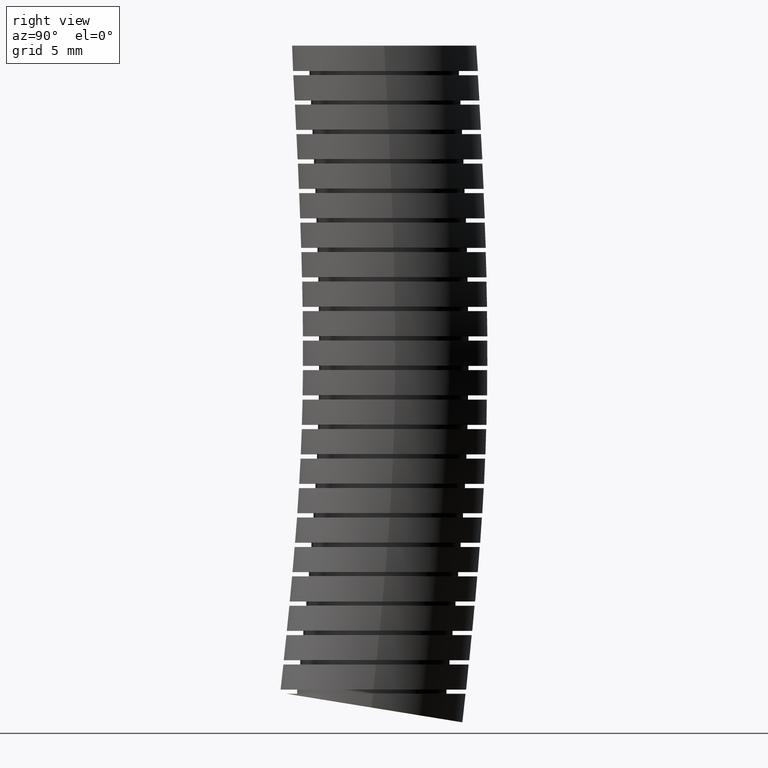
[diagram: clean part render]
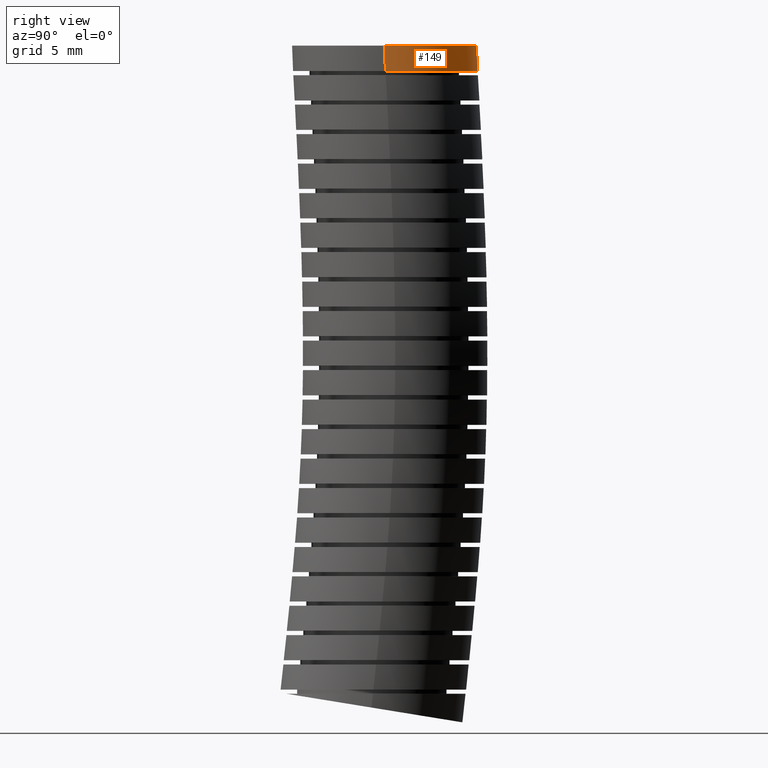
[diagram: same view with one face highlighted and labeled with its STEP entity id]
A machine part, right view. The second image highlights one B-rep face of the part: STEP entity #149.
In plain terms, the highlighted face is a freeform B-spline surface patch.
Its self-contained STEP definition (entity closure, byte-faithful):
#149 = ADVANCED_FACE ( 'NONE', ( #2914 ), #3220, .T. ) ;
#155 = ORIENTED_EDGE ( 'NONE', *, *, #185, .T. ) ;
#160 = EDGE_LOOP ( 'NONE', ( #262, #263, #248, #155 ) ) ;
#185 = EDGE_CURVE ( 'NONE', #11714, #11773, #3561, .T. ) ;
#247 = EDGE_CURVE ( 'NONE', #11772, #11783, #4138, .T. ) ;
#248 = ORIENTED_EDGE ( 'NONE', *, *, #11769, .T. ) ;
#262 = ORIENTED_EDGE ( 'NONE', *, *, #11785, .F. ) ;
#263 = ORIENTED_EDGE ( 'NONE', *, *, #247, .F. ) ;
#2914 = FACE_OUTER_BOUND ( 'NONE', #160, .T. ) ;
#3195 = CARTESIAN_POINT ( 'NONE',  ( 0.2199999999999999700, -0.4399999999999999500, 0.0000000000000000000 ) ) ;
#3196 = CARTESIAN_POINT ( 'NONE',  ( 0.2199999999999999700, -0.02999999999999998800, -1.569999999999999800 ) ) ;
#3197 = CARTESIAN_POINT ( 'NONE',  ( 0.2200000000000000000, -0.009606929841608550400, -1.380125810173523200 ) ) ;
#3198 = CARTESIAN_POINT ( 'NONE',  ( 0.2200000000000000000, 0.01505095857590814400, -1.150543086741312900 ) ) ;
#3204 = CARTESIAN_POINT ( 'NONE',  ( 0.2199999999999999700, -0.02999999999999998800, -1.569999999999999800 ) ) ;
#3205 = CARTESIAN_POINT ( 'NONE',  ( 0.2200000000000000000, -0.009606929841608550400, -1.380125810173523200 ) ) ;
#3206 = CARTESIAN_POINT ( 'NONE',  ( 0.2200000000000000000, 0.01505095857590814400, -1.150543086741312900 ) ) ;
#3207 = CARTESIAN_POINT ( 'NONE',  ( 0.2200000000000000000, 0.02865554522839106700, -0.7739593172595274900 ) ) ;
#3212 = CARTESIAN_POINT ( 'NONE',  ( -0.2199999999999998900, 0.4678224181498505900, -0.8025352102838663200 ) ) ;
#3213 = CARTESIAN_POINT ( 'NONE',  ( -0.2199999999999998600, 0.4639985686767905100, -0.4446172821565409500 ) ) ;
#3214 = CARTESIAN_POINT ( 'NONE',  ( -0.2199999999999998900, 0.4479995228922634700, -0.1482057607188469700 ) ) ;
#3215 = CARTESIAN_POINT ( 'NONE',  ( -0.2199999999999998900, 0.4399999999999999500, 0.0000000000000000000 ) ) ;
#3216 = CARTESIAN_POINT ( 'NONE',  ( -0.2199999999999999700, -0.02999999999999996100, -1.569999999999999800 ) ) ;
#3217 = CARTESIAN_POINT ( 'NONE',  ( -0.2200000000000000000, -0.009606929841608527800, -1.380125810173523200 ) ) ;
#3220 =( BOUNDED_SURFACE ( )  B_SPLINE_SURFACE ( 3, 3, ( 
 ( #3239, #3238, #3237, #3236, #3198, #3197, #3196 ),
 ( #3195, #3311, #3310, #3309, #3308, #3307, #3306 ),
 ( #3255, #3254, #3253, #3252, #3251, #3250, #3324 ),
 ( #3323, #3322, #3321, #3320, #3319, #3217, #3216 ),
 ( #3215, #3214, #3213, #3212, #3292, #3291, #3290 ),
 ( #3289, #3288, #3287, #3318, #3317, #3316, #3315 ),
 ( #3314, #3313, #3312, #3207, #3206, #3205, #3204 ) ),
 .UNSPECIFIED., .F., .F., .T. ) 
 B_SPLINE_SURFACE_WITH_KNOTS ( ( 4, 3, 4 ),
 ( 4, 1, 1, 1, 4 ),
 ( 0.0000000000000000000, 0.5000000000000000000, 1.000000000000000000 ),
 ( 0.0000000000000000000, 0.2799999999999999700, 0.5600000000000000500, 0.6361022193888284900, 1.000000000000000000 ),
 .UNSPECIFIED. ) 
 GEOMETRIC_REPRESENTATION_ITEM ( )  RATIONAL_B_SPLINE_SURFACE ( (
 ( 1.000000000000000000, 1.000000000000000000, 1.000000000000000200, 0.9999999999999997800, 0.9999999999999997800, 1.000000000000000000, 1.000000000000000000),
 ( 0.3333333333333333100, 0.3333333333333333100, 0.3333333333333333700, 0.3333333333333333100, 0.3333333333333332600, 0.3333333333333333100, 0.3333333333333333100),
 ( 0.3333333333333333100, 0.3333333333333333100, 0.3333333333333333700, 0.3333333333333333100, 0.3333333333333332600, 0.3333333333333333100, 0.3333333333333333100),
 ( 1.000000000000000000, 1.000000000000000000, 1.000000000000000200, 0.9999999999999997800, 0.9999999999999997800, 1.000000000000000000, 1.000000000000000000),
 ( 0.3333333333333333100, 0.3333333333333333100, 0.3333333333333333700, 0.3333333333333333100, 0.3333333333333332600, 0.3333333333333333100, 0.3333333333333333100),
 ( 0.3333333333333333100, 0.3333333333333333100, 0.3333333333333333700, 0.3333333333333333100, 0.3333333333333332600, 0.3333333333333333100, 0.3333333333333333100),
 ( 1.000000000000000000, 1.000000000000000000, 1.000000000000000200, 0.9999999999999997800, 0.9999999999999997800, 1.000000000000000000, 1.000000000000000000) ) ) 
 REPRESENTATION_ITEM ( '' )  SURFACE ( )  );
#3232 = CARTESIAN_POINT ( 'NONE',  ( -0.1340823162528526600, 0.1782420982723354200, -0.05999999999999994900 ) ) ;
#3234 = CARTESIAN_POINT ( 'NONE',  ( -0.1161989237648944500, 0.1901819290986074000, -0.05999999999999996300 ) ) ;
#3235 = CARTESIAN_POINT ( 'NONE',  ( -0.1100340641420366900, 0.1938777587332988800, -0.05999999999999997700 ) ) ;
#3236 = CARTESIAN_POINT ( 'NONE',  ( 0.2200000000000000000, 0.02865554522839106700, -0.7739593172595274900 ) ) ;
#3237 = CARTESIAN_POINT ( 'NONE',  ( 0.2199999999999999500, 0.02383978768935241300, -0.4406884739917595300 ) ) ;
#3238 = CARTESIAN_POINT ( 'NONE',  ( 0.2199999999999999500, 0.007946595896450805000, -0.1468961579972532000 ) ) ;
#3239 = CARTESIAN_POINT ( 'NONE',  ( 0.2199999999999999700, 0.0000000000000000000, 0.0000000000000000000 ) ) ;
#3250 = CARTESIAN_POINT ( 'NONE',  ( -0.2200000000000000600, -0.4452605421868002200, -1.318319795305659300 ) ) ;
#3251 = CARTESIAN_POINT ( 'NONE',  ( -0.2200000000000000600, -0.4222307848547833300, -1.099310172281269500 ) ) ;
#3252 = CARTESIAN_POINT ( 'NONE',  ( -0.2199999999999999700, -0.4105113276930683100, -0.7453834242351884400 ) ) ;
#3253 = CARTESIAN_POINT ( 'NONE',  ( -0.2200000000000000300, -0.4163189932980856400, -0.4367596658269781200 ) ) ;
#3254 = CARTESIAN_POINT ( 'NONE',  ( -0.2200000000000000800, -0.4321063310993618100, -0.1455865552756593400 ) ) ;
#3255 = CARTESIAN_POINT ( 'NONE',  ( -0.2200000000000000600, -0.4399999999999999500, 0.0000000000000000000 ) ) ;
#3287 = CARTESIAN_POINT ( 'NONE',  ( 0.2199999999999999700, 0.4639985686767905100, -0.4446172821565409500 ) ) ;
#3288 = CARTESIAN_POINT ( 'NONE',  ( 0.2199999999999999700, 0.4479995228922634700, -0.1482057607188469700 ) ) ;
#3289 = CARTESIAN_POINT ( 'NONE',  ( 0.2199999999999999700, 0.4399999999999999500, 0.0000000000000000000 ) ) ;
#3290 = CARTESIAN_POINT ( 'NONE',  ( -0.2199999999999998900, 0.4043070821439249100, -1.640550396169192700 ) ) ;
#3291 = CARTESIAN_POINT ( 'NONE',  ( -0.2199999999999998900, 0.4260466825035831300, -1.441931825041386800 ) ) ;
#3292 = CARTESIAN_POINT ( 'NONE',  ( -0.2199999999999999200, 0.4523327020065995900, -1.201776001201356700 ) ) ;
#3306 = CARTESIAN_POINT ( 'NONE',  ( 0.2199999999999999700, -0.4643070821439249100, -1.499449603830806900 ) ) ;
#3307 = CARTESIAN_POINT ( 'NONE',  ( 0.2199999999999999700, -0.4452605421868002200, -1.318319795305659300 ) ) ;
#3308 = CARTESIAN_POINT ( 'NONE',  ( 0.2200000000000000600, -0.4222307848547833300, -1.099310172281269500 ) ) ;
#3309 = CARTESIAN_POINT ( 'NONE',  ( 0.2199999999999999700, -0.4105113276930683100, -0.7453834242351884400 ) ) ;
#3310 = CARTESIAN_POINT ( 'NONE',  ( 0.2199999999999999700, -0.4163189932980856400, -0.4367596658269781200 ) ) ;
#3311 = CARTESIAN_POINT ( 'NONE',  ( 0.2199999999999999700, -0.4321063310993618100, -0.1455865552756593400 ) ) ;
#3312 = CARTESIAN_POINT ( 'NONE',  ( 0.2199999999999999500, 0.02383978768935241300, -0.4406884739917595300 ) ) ;
#3313 = CARTESIAN_POINT ( 'NONE',  ( 0.2199999999999999500, 0.007946595896450805000, -0.1468961579972532000 ) ) ;
#3314 = CARTESIAN_POINT ( 'NONE',  ( 0.2199999999999999700, 0.0000000000000000000, 0.0000000000000000000 ) ) ;
#3315 = CARTESIAN_POINT ( 'NONE',  ( 0.2199999999999999700, 0.4043070821439249100, -1.640550396169192700 ) ) ;
#3316 = CARTESIAN_POINT ( 'NONE',  ( 0.2199999999999999700, 0.4260466825035831300, -1.441931825041386800 ) ) ;
#3317 = CARTESIAN_POINT ( 'NONE',  ( 0.2200000000000000600, 0.4523327020065995900, -1.201776001201356700 ) ) ;
#3318 = CARTESIAN_POINT ( 'NONE',  ( 0.2199999999999999700, 0.4678224181498505900, -0.8025352102838663200 ) ) ;
#3319 = CARTESIAN_POINT ( 'NONE',  ( -0.2200000000000000000, 0.01505095857590816600, -1.150543086741312900 ) ) ;
#3320 = CARTESIAN_POINT ( 'NONE',  ( -0.2200000000000000000, 0.02865554522839109900, -0.7739593172595274900 ) ) ;
#3321 = CARTESIAN_POINT ( 'NONE',  ( -0.2199999999999999500, 0.02383978768935243700, -0.4406884739917595300 ) ) ;
#3322 = CARTESIAN_POINT ( 'NONE',  ( -0.2199999999999999500, 0.007946595896450831000, -0.1468961579972532000 ) ) ;
#3323 = CARTESIAN_POINT ( 'NONE',  ( -0.2199999999999999700, 2.694222958124176600E-017, 0.0000000000000000000 ) ) ;
#3324 = CARTESIAN_POINT ( 'NONE',  ( -0.2200000000000000600, -0.4643070821439249100, -1.499449603830806900 ) ) ;
#3355 = CARTESIAN_POINT ( 'NONE',  ( 0.1343298111861374600, 0.1780628566713958700, -0.05999999999999992100 ) ) ;
#3356 = CARTESIAN_POINT ( 'NONE',  ( 0.1454048124511096700, 0.1689561859374454400, -0.05999999999999995600 ) ) ;
#3357 = CARTESIAN_POINT ( 'NONE',  ( 0.1657022210090843000, 0.1486617638557394800, -0.05999999999999994900 ) ) ;
#3358 = CARTESIAN_POINT ( 'NONE',  ( 0.1749941402933339900, 0.1373393578235718700, -0.05999999999999998400 ) ) ;
#3359 = CARTESIAN_POINT ( 'NONE',  ( 0.1909580762678476100, 0.1134257305537671700, -0.05999999999999998400 ) ) ;
#3360 = CARTESIAN_POINT ( 'NONE',  ( 0.1977150799982625700, 0.1007900556247162000, -0.06000000000000001200 ) ) ;
#3361 = CARTESIAN_POINT ( 'NONE',  ( 0.2059965041236296300, 0.08080903231453538700, -0.05999999999999999800 ) ) ;
#3362 = CARTESIAN_POINT ( 'NONE',  ( 0.2084543846087093000, 0.07394005947621301600, -0.06000000000000006000 ) ) ;
#3363 = CARTESIAN_POINT ( 'NONE',  ( 0.2126418274003860900, 0.06011962447705119400, -0.06000000000000004600 ) ) ;
#3364 = CARTESIAN_POINT ( 'NONE',  ( 0.2143832120613619100, 0.05314940277817538400, -0.06000000000000001900 ) ) ;
#3365 = CARTESIAN_POINT ( 'NONE',  ( 0.2185739309260156200, 0.03206274000472529600, -0.06000000000000001900 ) ) ;
#3366 = CARTESIAN_POINT ( 'NONE',  ( 0.2199999999999999500, 0.01777203323856023700, -0.06000000000000183000 ) ) ;
#3367 = CARTESIAN_POINT ( 'NONE',  ( 0.2199999999999999700, 0.003238461836219977600, -0.05999999999999999800 ) ) ;
#3389 = CARTESIAN_POINT ( 'NONE',  ( -0.09728685598290426300, 0.2006872006721845700, -0.05999999999999997700 ) ) ;
#3390 = CARTESIAN_POINT ( 'NONE',  ( -0.09069312698740977800, 0.2038005312165776200, -0.05999999999999995600 ) ) ;
#3391 = CARTESIAN_POINT ( 'NONE',  ( -0.07071705980607868900, 0.2120567890857372200, -0.05999999999999996300 ) ) ;
#3392 = CARTESIAN_POINT ( 'NONE',  ( -0.05700353465040890900, 0.2162073898680294800, -0.05999999999999994200 ) ) ;
#3393 = CARTESIAN_POINT ( 'NONE',  ( -0.02878855248798623700, 0.2218163541753221100, -0.05999999999999994900 ) ) ;
#3394 = CARTESIAN_POINT ( 'NONE',  ( -0.01421653844502615700, 0.2232427432876481500, -0.05999999999999993500 ) ) ;
#3395 = CARTESIAN_POINT ( 'NONE',  ( 0.01447689912795179300, 0.2232257648704847100, -0.05999999999999993500 ) ) ;
#3396 = CARTESIAN_POINT ( 'NONE',  ( 0.02875037841138290300, 0.2218275319487606800, -0.05999999999999996300 ) ) ;
#3397 = CARTESIAN_POINT ( 'NONE',  ( 0.05714683807039441800, 0.2161752997184785400, -0.05999999999999995600 ) ) ;
#3398 = CARTESIAN_POINT ( 'NONE',  ( 0.07100749478239330700, 0.2119525202546918300, -0.05999999999999996300 ) ) ;
#3399 = CARTESIAN_POINT ( 'NONE',  ( 0.09086054373334530300, 0.2037232638745617200, -0.05999999999999994900 ) ) ;
#3400 = CARTESIAN_POINT ( 'NONE',  ( 0.09734551815155115300, 0.2006573441184884000, -0.05999999999999999800 ) ) ;
#3401 = CARTESIAN_POINT ( 'NONE',  ( 0.1100459697035827400, 0.1938699104041536300, -0.05999999999999999100 ) ) ;
#3402 = CARTESIAN_POINT ( 'NONE',  ( 0.1162947333697186600, 0.1901248357834572900, -0.05999999999999990100 ) ) ;
#3561 = B_SPLINE_CURVE_WITH_KNOTS ( 'NONE', 3,
 ( #3367, #3366, #3365, #3364, #3363, #3362, #3361, #3360, #3359, #3358, #3357, #3356, #3355, #3402, #3401, #3400, #3399, #3398, #3397, #3396, #3395, #3394, #3393, #3392, #3391, #3390, #3389, #3235, #3234, #3232, #3594, #3590, #3615, #3595, #3675, #3601, #3589, #3613, #3702, #3769, #3610, #3647 ),
 .UNSPECIFIED., .F., .F.,
 ( 4, 2, 2, 2, 2, 2, 2, 2, 2, 2, 2, 2, 2, 2, 2, 2, 2, 2, 2, 2, 4 ),
 ( 5.222490562457162100E-018, 0.001091739279144493100, 0.001637608918716736800, 0.002183478558288980600, 0.003275217837433466300, 0.004366957116577951600, 0.005458696395722439100, 0.006004566035294680600, 0.006550435674866923000, 0.007642174954011406200, 0.008733914233155889300, 0.009825653512300372400, 0.01091739279144485700, 0.01146326243101709900, 0.01200913207058934000, 0.01310087134973382500, 0.01419261062887830800, 0.01473848026845054800, 0.01528434990802278800, 0.01637608918716727100, 0.01746782846631175100 ),
 .UNSPECIFIED. ) ;
#3589 = CARTESIAN_POINT ( 'NONE',  ( -0.2004594574610308900, 0.09416560805423235300, -0.06000000000000002600 ) ) ;
#3590 = CARTESIAN_POINT ( 'NONE',  ( -0.1657413177628180900, 0.1486338468370533300, -0.05999999999999994200 ) ) ;
#3594 = CARTESIAN_POINT ( 'NONE',  ( -0.1451956274073803700, 0.1691540733058368400, -0.05999999999999996300 ) ) ;
#3595 = CARTESIAN_POINT ( 'NONE',  ( -0.1868223823729881200, 0.1196353066013098700, -0.06000000000000002600 ) ) ;
#3601 = CARTESIAN_POINT ( 'NONE',  ( -0.1973354615231801800, 0.1007598115063446400, -0.06000000000000001200 ) ) ;
#3610 = CARTESIAN_POINT ( 'NONE',  ( -0.2200000000000000600, 0.01772538823366180300, -0.05999999999999997700 ) ) ;
#3613 = CARTESIAN_POINT ( 'NONE',  ( -0.2087497645958976400, 0.07417196668079213700, -0.06000000000000003200 ) ) ;
#3615 = CARTESIAN_POINT ( 'NONE',  ( -0.1748671665278413400, 0.1375000016800646500, -0.05999999999999999100 ) ) ;
#3647 = CARTESIAN_POINT ( 'NONE',  ( -0.2199999999999999700, 0.003238461836220001400, -0.05999999999999997700 ) ) ;
#3675 = CARTESIAN_POINT ( 'NONE',  ( -0.1905214309870231500, 0.1134799332160178300, -0.06000000000000001900 ) ) ;
#3702 = CARTESIAN_POINT ( 'NONE',  ( -0.2129133338547938300, 0.06045975227335328300, -0.05999999999999994900 ) ) ;
#3769 = CARTESIAN_POINT ( 'NONE',  ( -0.2185477663190381900, 0.03227860935873225900, -0.05999999999999994900 ) ) ;
#4057 = AXIS2_PLACEMENT_3D ( 'NONE', #4082, #4081, #4080 ) ;
#4080 = DIRECTION ( 'NONE',  ( 1.000000000000000000, 0.0000000000000000000, 0.0000000000000000000 ) ) ;
#4081 = DIRECTION ( 'NONE',  ( 0.0000000000000000000, 0.0000000000000000000, 1.000000000000000000 ) ) ;
#4082 = CARTESIAN_POINT ( 'NONE',  ( 0.0000000000000000000, 0.0000000000000000000, 0.0000000000000000000 ) ) ;
#4138 = CIRCLE ( 'NONE', #4057, 0.2199999999999999700 ) ;
#10513 = CARTESIAN_POINT ( 'NONE',  ( 0.2199999999999999700, 0.003238461836219977600, -0.05999999999999999800 ) ) ;
#10959 = CARTESIAN_POINT ( 'NONE',  ( -0.2199999999999999700, 0.003238461836220001400, -0.05999999999999997700 ) ) ;
#10964 = CARTESIAN_POINT ( 'NONE',  ( 0.2199999999999999700, 0.0000000000000000000, 0.0000000000000000000 ) ) ;
#10965 = CARTESIAN_POINT ( 'NONE',  ( 0.2199999999999999700, 0.003238461836219977600, -0.05999999999999999800 ) ) ;
#10966 = CARTESIAN_POINT ( 'NONE',  ( 0.2199999999999999700, 0.002163876546221054800, -0.04000016550007368800 ) ) ;
#11039 = CARTESIAN_POINT ( 'NONE',  ( 0.2199999999999999700, 0.001081938273110527400, -0.02000008275003684400 ) ) ;
#11040 = CARTESIAN_POINT ( 'NONE',  ( 0.2199999999999999700, 0.0000000000000000000, 0.0000000000000000000 ) ) ;
#11042 = B_SPLINE_CURVE_WITH_KNOTS ( 'NONE', 3,
 ( #11040, #11039, #10966, #10965 ),
 .UNSPECIFIED., .F., .F.,
 ( 4, 4 ),
 ( 0.0000000000000000000, 0.03812232563710094000 ),
 .UNSPECIFIED. ) ;
#11159 = CARTESIAN_POINT ( 'NONE',  ( -0.2199999999999999700, 0.003238461836220001400, -0.05999999999999997700 ) ) ;
#11160 = CARTESIAN_POINT ( 'NONE',  ( -0.2199999999999999700, 0.002163876546221080400, -0.04000016550007367400 ) ) ;
#11161 = CARTESIAN_POINT ( 'NONE',  ( -0.2199999999999999700, 0.001081938273110553900, -0.02000008275003683400 ) ) ;
#11162 = CARTESIAN_POINT ( 'NONE',  ( -0.2199999999999999700, 2.694222958124176600E-017, 0.0000000000000000000 ) ) ;
#11190 = CARTESIAN_POINT ( 'NONE',  ( -0.2199999999999999700, 2.694222958124176600E-017, 0.0000000000000000000 ) ) ;
#11206 = B_SPLINE_CURVE_WITH_KNOTS ( 'NONE', 3,
 ( #11162, #11161, #11160, #11159 ),
 .UNSPECIFIED., .F., .F.,
 ( 4, 4 ),
 ( 0.0000000000000000000, 0.03812232563710091900 ),
 .UNSPECIFIED. ) ;
#11714 = VERTEX_POINT ( 'NONE', #10513 ) ;
#11769 = EDGE_CURVE ( 'NONE', #11772, #11714, #11042, .T. ) ;
#11772 = VERTEX_POINT ( 'NONE', #10964 ) ;
#11773 = VERTEX_POINT ( 'NONE', #10959 ) ;
#11783 = VERTEX_POINT ( 'NONE', #11190 ) ;
#11785 = EDGE_CURVE ( 'NONE', #11783, #11773, #11206, .T. ) ;